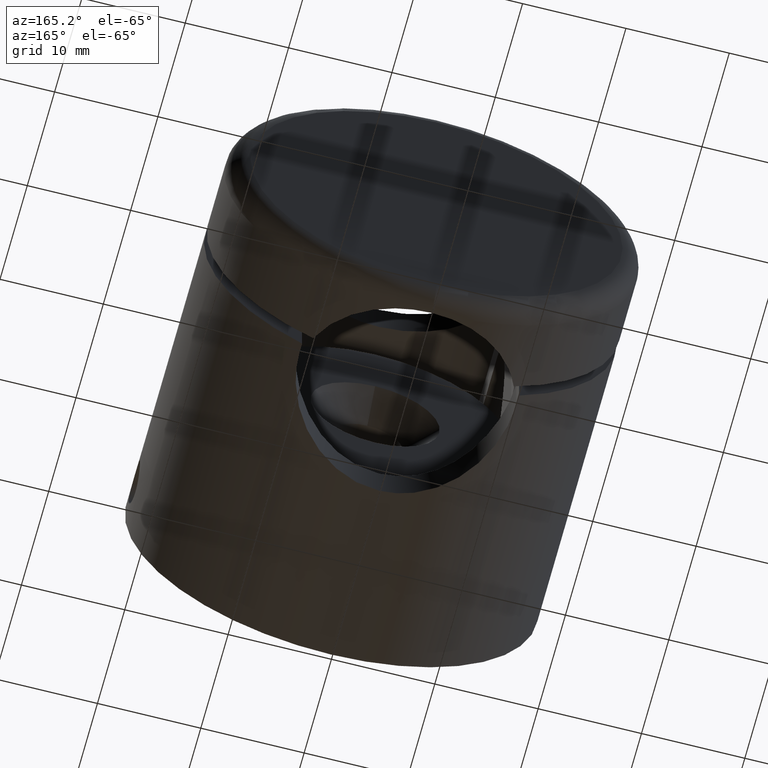
[diagram: clean part render]
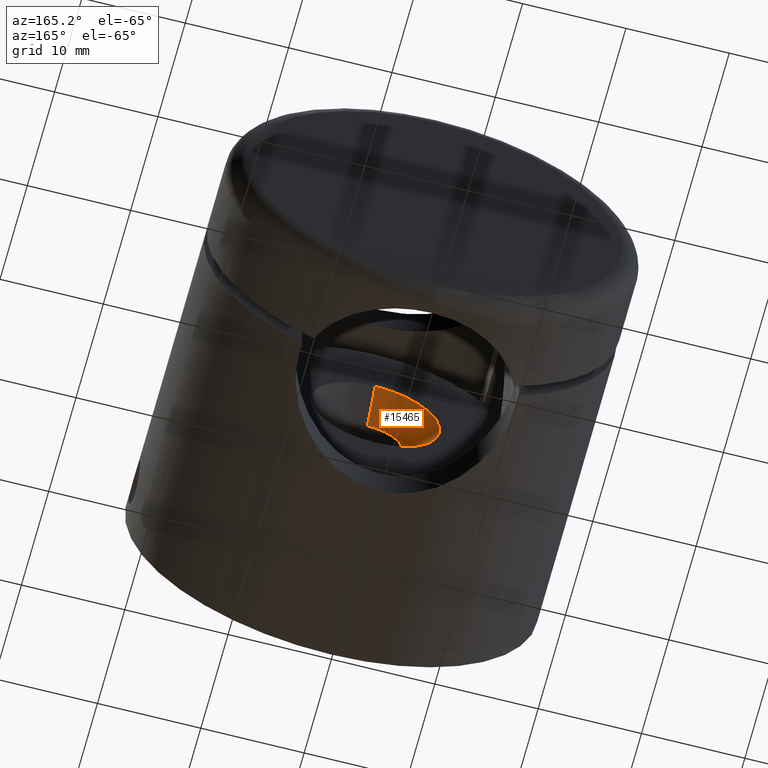
[diagram: same view with one face highlighted and labeled with its STEP entity id]
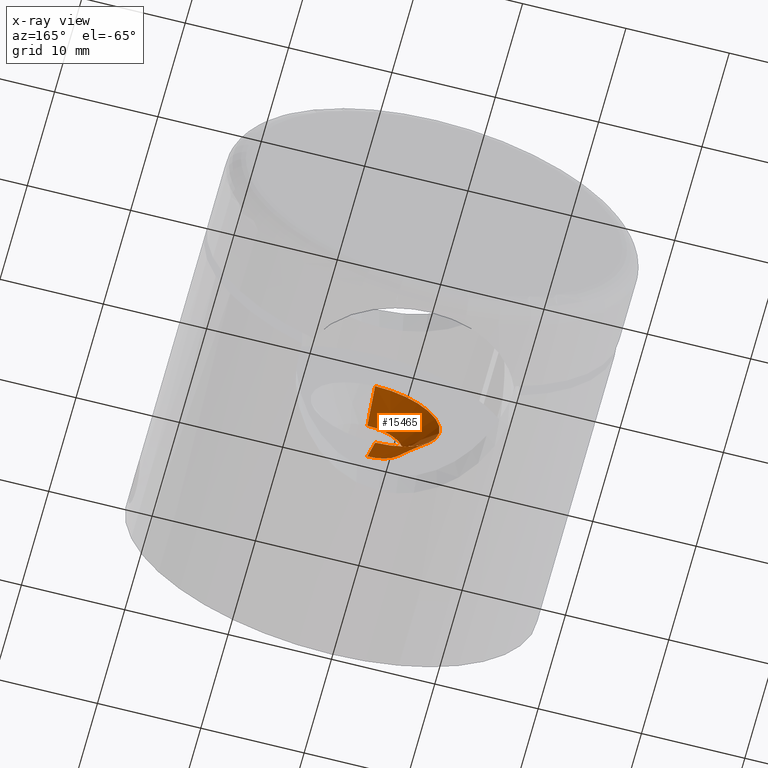
[diagram: x-ray of the same camera — body ghosted, the highlighted face saturated]
A machine part, auxiliary view. The second image highlights one B-rep face of the part: STEP entity #15465.
The next image is the same camera in x-ray: the body ghosted, the highlighted face saturated — about 0% of this face is hidden behind the body in this view.
In plain terms, the highlighted conical surface has half-angle 45 deg.
Its self-contained STEP definition (entity closure, byte-faithful):
#483 = ORIENTED_EDGE ( 'NONE', *, *, #7771, .T. ) ;
#817 = DIRECTION ( 'NONE',  ( 0.000000000000000000, 0.000000000000000000, 1.000000000000000000 ) ) ;
#2375 = CARTESIAN_POINT ( 'NONE',  ( 7.654042494670957606E-16, 16.00000000000000000, -6.250000000000000000 ) ) ;
#3359 = CARTESIAN_POINT ( 'NONE',  ( 0.000000000000000000, 16.00000000000000000, 0.000000000000000000 ) ) ;
#3377 = DIRECTION ( 'NONE',  ( 0.000000000000000000, -1.000000000000000000, 0.000000000000000000 ) ) ;
#3610 = FACE_OUTER_BOUND ( 'NONE', #4122, .T. ) ;
#3663 = VERTEX_POINT ( 'NONE', #15015 ) ;
#4122 = EDGE_LOOP ( 'NONE', ( #9196, #483, #14616, #15302 ) ) ;
#4480 = EDGE_CURVE ( 'NONE', #11524, #15748, #10310, .T. ) ;
#5002 = CIRCLE ( 'NONE', #10236, 3.399999999999997691 ) ;
#5370 = VERTEX_POINT ( 'NONE', #2375 ) ;
#5399 = CARTESIAN_POINT ( 'NONE',  ( 0.000000000000000000, 16.00000000000000000, 6.250000000000000000 ) ) ;
#6010 = CIRCLE ( 'NONE', #9146, 6.250000000000000000 ) ;
#6024 = VECTOR ( 'NONE', #10896, 999.9999999999998863 ) ;
#7165 = CARTESIAN_POINT ( 'NONE',  ( 0.000000000000000000, 13.15000000000000036, 0.000000000000000000 ) ) ;
#7771 = EDGE_CURVE ( 'NONE', #3663, #5370, #11456, .T. ) ;
#7979 = EDGE_CURVE ( 'NONE', #11524, #3663, #5002, .T. ) ;
#8470 = CARTESIAN_POINT ( 'NONE',  ( 7.654042494670957606E-16, 16.00000000000000000, -6.250000000000000000 ) ) ;
#8693 = EDGE_CURVE ( 'NONE', #5370, #15748, #6010, .T. ) ;
#9146 = AXIS2_PLACEMENT_3D ( 'NONE', #9206, #11712, #9264 ) ;
#9196 = ORIENTED_EDGE ( 'NONE', *, *, #7979, .T. ) ;
#9206 = CARTESIAN_POINT ( 'NONE',  ( 0.000000000000000000, 16.00000000000000000, 0.000000000000000000 ) ) ;
#9264 = DIRECTION ( 'NONE',  ( 0.000000000000000000, 0.000000000000000000, 1.000000000000000000 ) ) ;
#9596 = CONICAL_SURFACE ( 'NONE', #10745, 6.250000000000000000, 0.7853981633974487231 ) ;
#10236 = AXIS2_PLACEMENT_3D ( 'NONE', #7165, #3377, #11931 ) ;
#10310 = LINE ( 'NONE', #11859, #12895 ) ;
#10681 = CARTESIAN_POINT ( 'NONE',  ( 0.000000000000000000, 13.15000000000000036, 3.399999999999997691 ) ) ;
#10745 = AXIS2_PLACEMENT_3D ( 'NONE', #3359, #11083, #817 ) ;
#10896 = DIRECTION ( 'NONE',  ( 8.659560562354937789E-17, 0.7071067811865472397, -0.7071067811865479058 ) ) ;
#11083 = DIRECTION ( 'NONE',  ( -0.000000000000000000, 1.000000000000000000, -0.000000000000000000 ) ) ;
#11456 = LINE ( 'NONE', #8470, #6024 ) ;
#11524 = VERTEX_POINT ( 'NONE', #10681 ) ;
#11678 = DIRECTION ( 'NONE',  ( 0.000000000000000000, 0.7071067811865472397, 0.7071067811865479058 ) ) ;
#11712 = DIRECTION ( 'NONE',  ( -0.000000000000000000, 1.000000000000000000, -0.000000000000000000 ) ) ;
#11859 = CARTESIAN_POINT ( 'NONE',  ( 0.000000000000000000, 16.00000000000000000, 6.250000000000000000 ) ) ;
#11931 = DIRECTION ( 'NONE',  ( 0.000000000000000000, 0.000000000000000000, 1.000000000000000000 ) ) ;
#12895 = VECTOR ( 'NONE', #11678, 999.9999999999998863 ) ;
#14616 = ORIENTED_EDGE ( 'NONE', *, *, #8693, .T. ) ;
#15015 = CARTESIAN_POINT ( 'NONE',  ( 5.908920805885977604E-16, 13.15000000000000036, -3.399999999999997691 ) ) ;
#15302 = ORIENTED_EDGE ( 'NONE', *, *, #4480, .F. ) ;
#15465 = ADVANCED_FACE ( 'NONE', ( #3610 ), #9596, .F. ) ;
#15748 = VERTEX_POINT ( 'NONE', #5399 ) ;